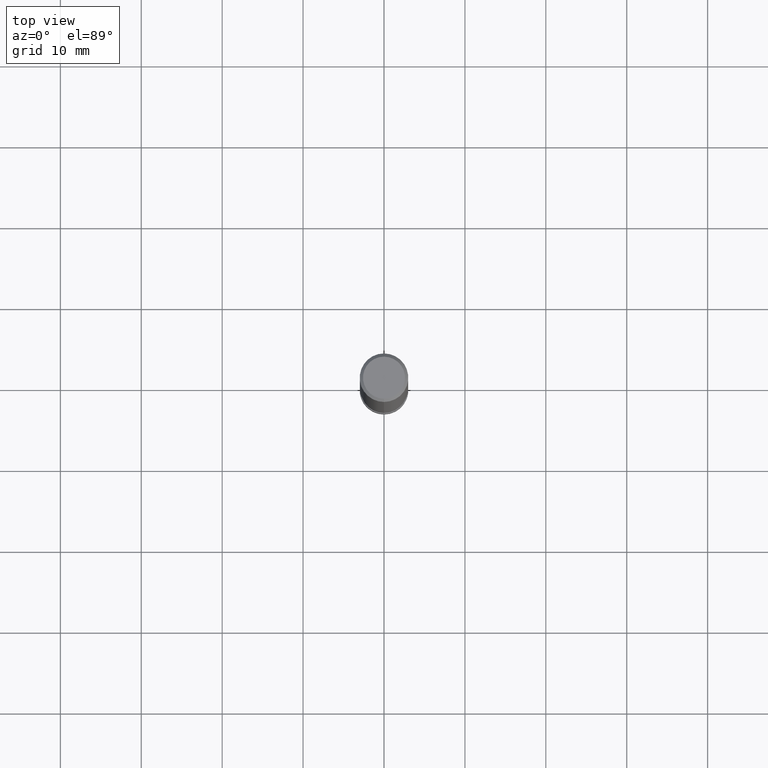
[diagram: clean part render]
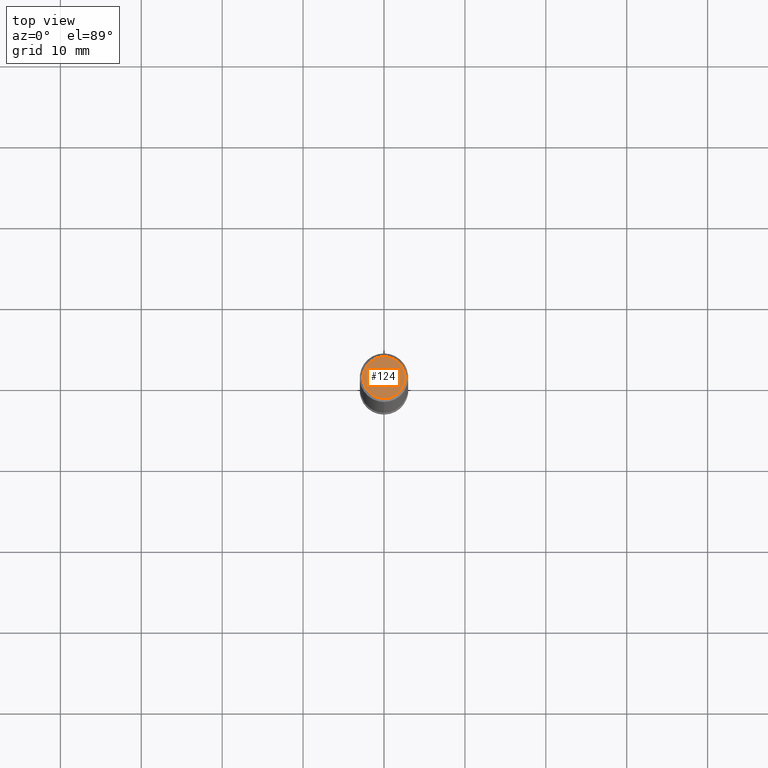
[diagram: same view with one face highlighted and labeled with its STEP entity id]
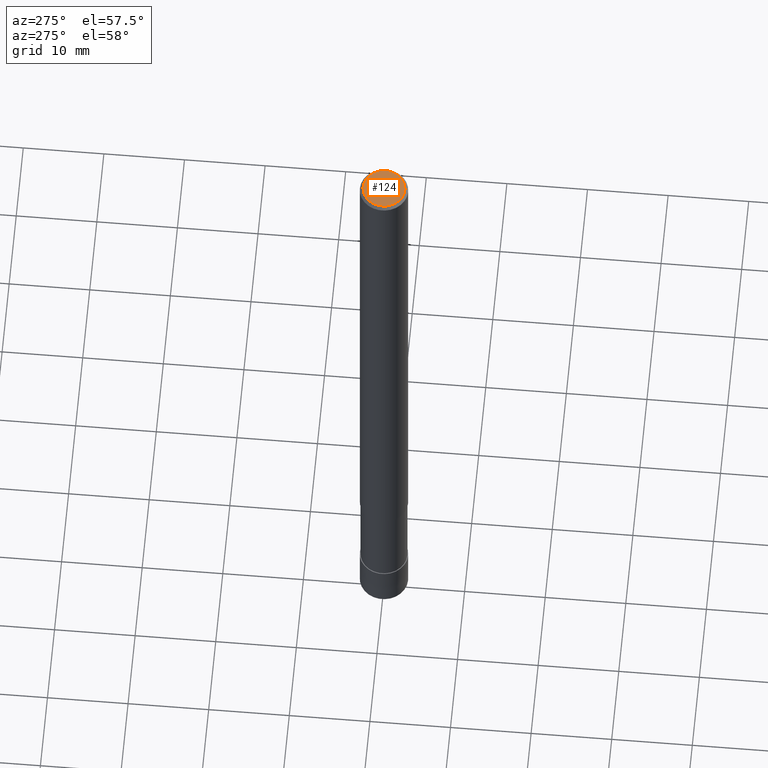
[diagram: same view with one face highlighted and labeled with its STEP entity id]
A machine part, top view. The second image highlights one B-rep face of the part: STEP entity #124.
A second angle (auxiliary view) of the same face is appended — the face is thin or edge-on in the first view.
In plain terms, the highlighted planar face has unit normal (-0, 0, 1).
Its self-contained STEP definition (entity closure, byte-faithful):
#112=EDGE_CURVE('',#166,#186,#254,.T.);
#124=ADVANCED_FACE('',(#269),#270,.T.);
#130=EDGE_CURVE('',#186,#166,#276,.T.);
#166=VERTEX_POINT('',#315);
#186=VERTEX_POINT('',#338);
#254=CIRCLE('',#403,2.6);
#269=FACE_OUTER_BOUND('',#421,.T.);
#270=PLANE('',#422);
#276=CIRCLE('',#430,2.6);
#315=CARTESIAN_POINT('',(3.18397651993818E-016,-2.6,0.0));
#338=CARTESIAN_POINT('',(0.0,2.6,0.0));
#403=AXIS2_PLACEMENT_3D('',#576,#577,#578);
#421=EDGE_LOOP('',(#608,#609));
#422=AXIS2_PLACEMENT_3D('',#610,#611,#612);
#430=AXIS2_PLACEMENT_3D('',#616,#617,#618);
#576=CARTESIAN_POINT('',(0.0,0.0,0.0));
#577=DIRECTION('',(0.0,0.0,-1.0));
#578=DIRECTION('',(0.0,1.0,0.0));
#608=ORIENTED_EDGE('',*,*,#130,.F.);
#609=ORIENTED_EDGE('',*,*,#112,.F.);
#610=CARTESIAN_POINT('',(0.0,1.3,0.0));
#611=DIRECTION('',(-0.0,0.0,1.0));
#612=DIRECTION('',(0.0,-1.0,0.0));
#616=CARTESIAN_POINT('',(0.0,0.0,0.0));
#617=DIRECTION('',(0.0,0.0,-1.0));
#618=DIRECTION('',(0.0,1.0,0.0));